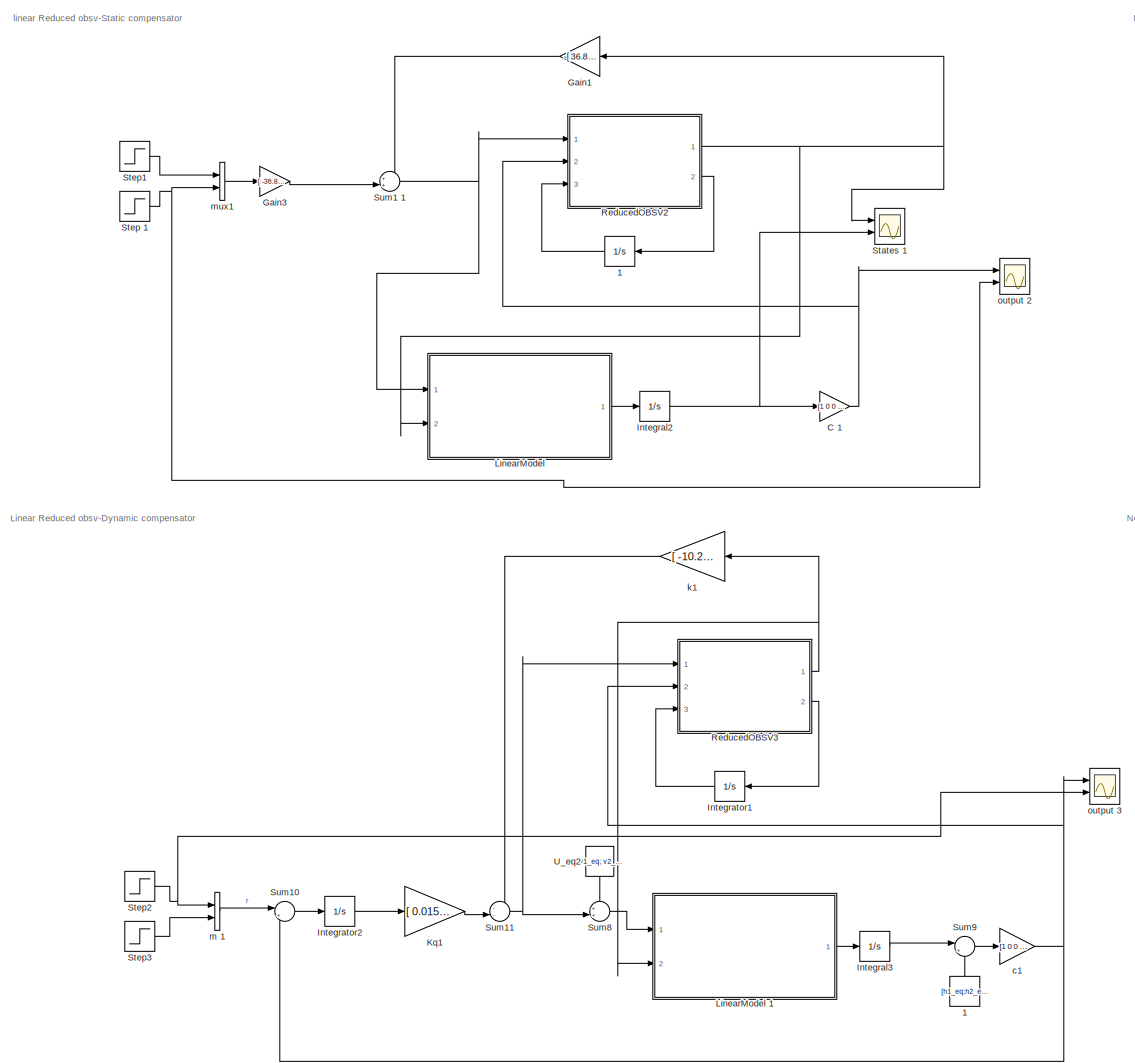
[diagram: root canvas - part 1/2, left side, full height]
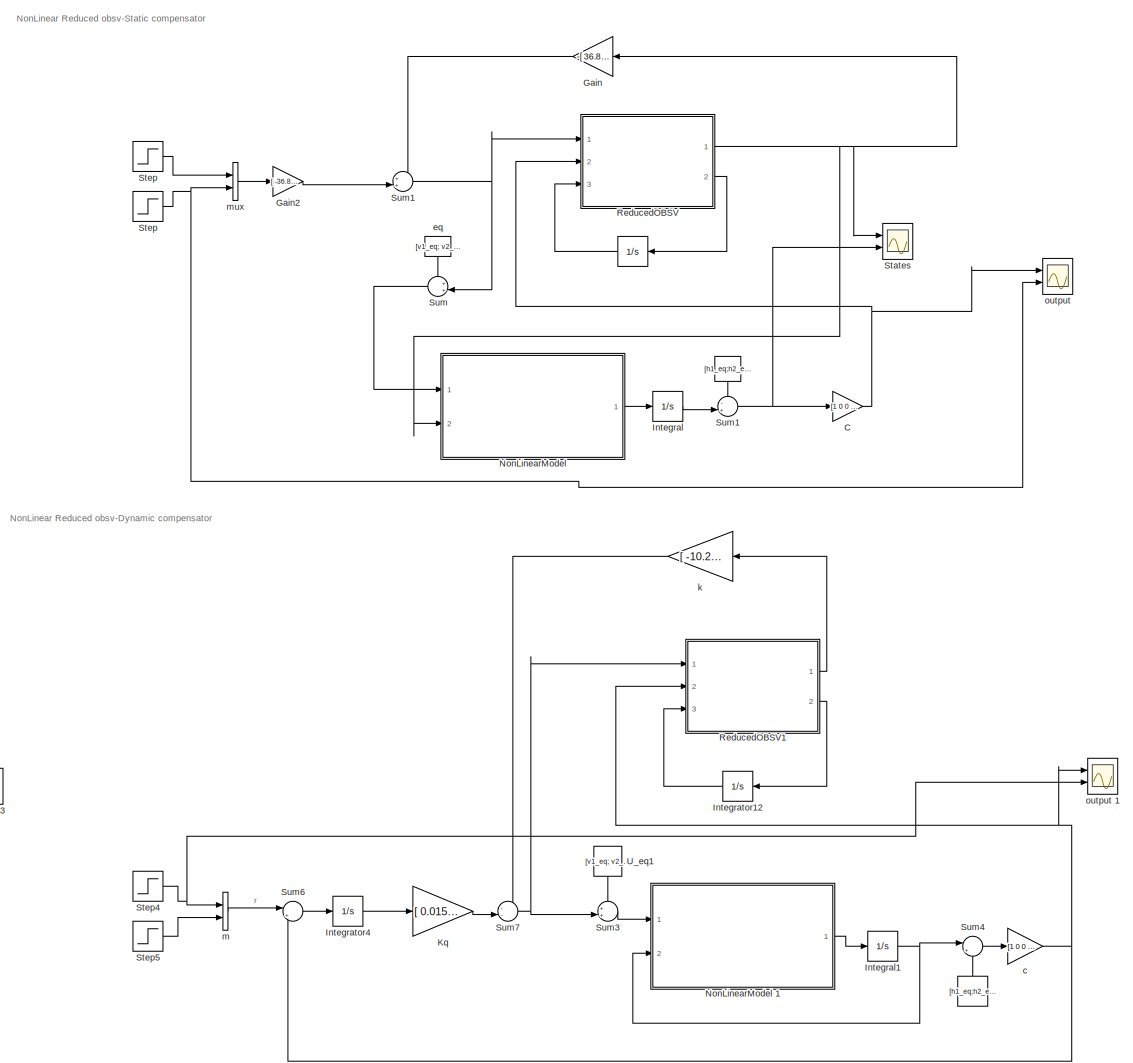
[diagram: root canvas - part 2/2, right side, full height]
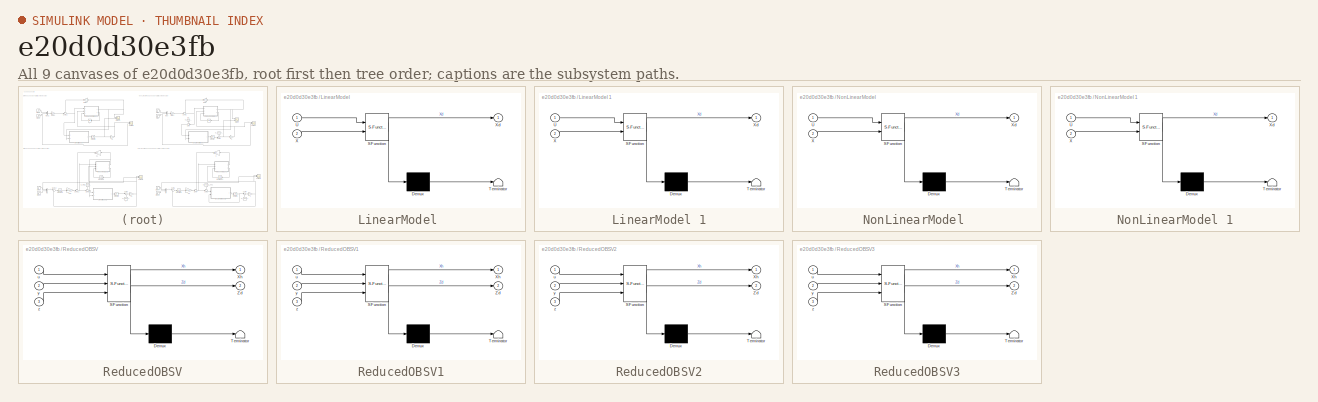
[diagram: thumbnail index - all 9 canvases of the model, root first then tree order]
MODEL slx_e20d0d30e3fb
KIND model
CONFIG AbsTol = auto
CONFIG EnableMultiTasking = off
CONFIG FixedStep = auto
CONFIG MaxStep = auto
CONFIG MinStep = auto
CONFIG RelTol = 1e-3
CONFIG SampleTimeConstraint = Unconstrained
CONFIG Solver = VariableStepAuto
CONFIG SolverName = VariableStepAuto
CONFIG StartTime = 0.0
CONFIG StopTime = 600
BLOCK [Constant]  
  NameLocation = left
  Value = [h1_eq;h2_eq;h3_eq;h4_eq]
BLOCK [Integrator]   
  InitialCondition = [0;0]
  NameLocation = top
  Ports = [1, 1]
BLOCK [Constant]      
  NameLocation = right
  Value = [h1_eq;h2_eq;h3_eq;h4_eq]
BLOCK [Constant]      1
  NameLocation = right
  Value = [h1_eq;h2_eq;h3_eq;h4_eq]
BLOCK [Integrator]   1
  InitialCondition = [1;1]
  NameLocation = top
  Ports = [1, 1]
BLOCK [Scope]  States 
  Floating = off
  NumInputPorts = 2
  Ports = [2]
  ScopeSpecificationString = Simulink.scopes.TimeScopeBlockCfg('CurrentConfiguration', extmgr.ConfigurationSet(extmgr.Configuration('Core','General UI',true,'FigureColor',[1 1 1]),extmgr.Configuration('Core','Source UI',true),extmgr.Configuration('Sources','WiredSimulink',true,'DataLoggingSaveFormat','StructureWithTime','DataLoggingDecimation','1','DataLoggingDecimateData',true),extmgr.Configuration('Visuals','Time Domain',tr...<+4528ch>
BLOCK [Scope]  States 1
  Floating = off
  NumInputPorts = 2
  Ports = [2]
  ScopeSpecificationString = Simulink.scopes.TimeScopeBlockCfg('CurrentConfiguration', extmgr.ConfigurationSet(extmgr.Configuration('Core','General UI',true,'FigureColor',[1 1 1]),extmgr.Configuration('Core','Source UI',true),extmgr.Configuration('Sources','WiredSimulink',true,'DataLoggingSaveFormat','StructureWithTime','DataLoggingDecimation','1','DataLoggingDecimateData',true,'DataLoggingVariableName','ScopeData2'),extmgr.C...<+4588ch>
BLOCK [Gain] C 
  Gain = [1 0 0 0;\n   0 1 0 0]
  Multiplication = Matrix(K*u)
BLOCK [Gain] C 1
  Gain = [1 0 0 0;\n   0 1 0 0]
  Multiplication = Matrix(K*u)
BLOCK [Gain] Gain
  Gain = -[ 36.82, 127.2, -58.99, 57.97; 31.33, 41.91,  23.64, -4.53]
  Multiplication = Matrix(K*u)
BLOCK [Gain] Gain1
  Gain = -[ 36.82, 127.2, -58.99, 57.97; 31.33, 41.91,  23.64, -4.53]
  Multiplication = Matrix(K*u)
BLOCK [Gain] Gain2
  Gain = [ -36.89, 193.5; 56.82,  28.4]
  Multiplication = Matrix(K*u)
BLOCK [Gain] Gain3
  Gain = [ -36.89, 193.5; 56.82,  28.4]
  Multiplication = Matrix(K*u)
BLOCK [Integrator] Integral
  InitialCondition = [h1_eq+0.1; h2_eq+0.1; h3_eq; h4_eq]
  Ports = [1, 1]
BLOCK [Integrator] Integral1
  InitialCondition = [h1_eq+0.1; h2_eq+0.1; h3_eq; h4_eq]
  Ports = [1, 1]
BLOCK [Integrator] Integral2
  InitialCondition = [0.5;0.5;05;0.5]
  Ports = [1, 1]
BLOCK [Integrator] Integral3
  InitialCondition = [h1_eq; h2_eq; h3_eq; h4_eq]
  Ports = [1, 1]
BLOCK [Integrator] Integrator1
  InitialCondition = [0;0]
  NameLocation = top
  Ports = [1, 1]
BLOCK [Integrator] Integrator12
  InitialCondition = [0;0]
  NameLocation = top
  Ports = [1, 1]
BLOCK [Integrator] Integrator2
  Ports = [1, 1]
BLOCK [Integrator] Integrator4
  Ports = [1, 1]
BLOCK [Gain] Kq
  Gain = [ 0.0157, -0.888; -0.994, -0.123]
  Multiplication = Matrix(K*u)
BLOCK [Gain] Kq1
  Gain = [ 0.0157, -0.888; -0.994, -0.123]
  Multiplication = Matrix(K*u)
BLOCK [SubSystem] LinearModel 
  ErrorFcn = Stateflow.Translate.translate
  PermitHierarchicalResolution = ExplicitOnly
  Ports = [2, 1]
  RequestExecContextInheritance = off
  SFBlockType = MATLAB Function
  TreatAsAtomicUnit = on
BLOCK [Demux] LinearModel / Demux 
  Outputs = 1
  Ports = [1, 1]
BLOCK [S-Function] LinearModel / SFunction 
  EnableBusSupport = on
  FunctionName = sf_sfun
  PortCounts = [2 2]
  Ports = [2, 2]
  SFcnIsStateOwnerBlock = off
  SFunctionDeploymentMode = off
  Tag = Stateflow S-Function 3
BLOCK [Terminator] LinearModel / Terminator 
BLOCK [Inport] LinearModel /U
BLOCK [Inport] LinearModel /X
  Port = 2
BLOCK [Outport] LinearModel /Xd
BLOCK [SubSystem] LinearModel 1
  ErrorFcn = Stateflow.Translate.translate
  PermitHierarchicalResolution = ExplicitOnly
  Ports = [2, 1]
  RequestExecContextInheritance = off
  SFBlockType = MATLAB Function
  TreatAsAtomicUnit = on
BLOCK [Demux] LinearModel 1/ Demux 
  Outputs = 1
  Ports = [1, 1]
BLOCK [S-Function] LinearModel 1/ SFunction 
  EnableBusSupport = on
  FunctionName = sf_sfun
  PortCounts = [2 2]
  Ports = [2, 2]
  SFcnIsStateOwnerBlock = off
  SFunctionDeploymentMode = off
  Tag = Stateflow S-Function 5
BLOCK [Terminator] LinearModel 1/ Terminator 
BLOCK [Inport] LinearModel 1/U
BLOCK [Inport] LinearModel 1/X
  Port = 2
BLOCK [Outport] LinearModel 1/Xd
BLOCK [SubSystem] NonLinearModel 
  ErrorFcn = Stateflow.Translate.translate
  PermitHierarchicalResolution = ExplicitOnly
  Ports = [2, 1]
  RequestExecContextInheritance = off
  SFBlockType = MATLAB Function
  TreatAsAtomicUnit = on
BLOCK [Demux] NonLinearModel / Demux 
  Outputs = 1
  Ports = [1, 1]
BLOCK [S-Function] NonLinearModel / SFunction 
  EnableBusSupport = on
  FunctionName = sf_sfun
  PortCounts = [2 2]
  Ports = [2, 2]
  SFcnIsStateOwnerBlock = off
  SFunctionDeploymentMode = off
  Tag = Stateflow S-Function 11
BLOCK [Terminator] NonLinearModel / Terminator 
BLOCK [Inport] NonLinearModel /U
BLOCK [Inport] NonLinearModel /X
  Port = 2
BLOCK [Outport] NonLinearModel /Xd
BLOCK [SubSystem] NonLinearModel 1
  ErrorFcn = Stateflow.Translate.translate
  PermitHierarchicalResolution = ExplicitOnly
  Ports = [2, 1]
  RequestExecContextInheritance = off
  SFBlockType = MATLAB Function
  TreatAsAtomicUnit = on
BLOCK [Demux] NonLinearModel 1/ Demux 
  Outputs = 1
  Ports = [1, 1]
BLOCK [S-Function] NonLinearModel 1/ SFunction 
  EnableBusSupport = on
  FunctionName = sf_sfun
  PortCounts = [2 2]
  Ports = [2, 2]
  SFcnIsStateOwnerBlock = off
  SFunctionDeploymentMode = off
  Tag = Stateflow S-Function 2
BLOCK [Terminator] NonLinearModel 1/ Terminator 
BLOCK [Inport] NonLinearModel 1/U
BLOCK [Inport] NonLinearModel 1/X
  Port = 2
BLOCK [Outport] NonLinearModel 1/Xd
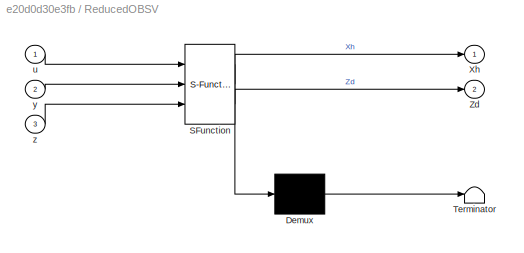
BLOCK [SubSystem] ReducedOBSV
  ErrorFcn = Stateflow.Translate.translate
  PermitHierarchicalResolution = ExplicitOnly
  Ports = [3, 2]
  RequestExecContextInheritance = off
  SFBlockType = MATLAB Function
  TreatAsAtomicUnit = on
BLOCK [Demux] ReducedOBSV/ Demux 
  Outputs = 1
  Ports = [1, 1]
BLOCK [S-Function] ReducedOBSV/ SFunction 
  EnableBusSupport = on
  FunctionName = sf_sfun
  PortCounts = [3 3]
  Ports = [3, 3]
  SFcnIsStateOwnerBlock = off
  SFunctionDeploymentMode = off
  Tag = Stateflow S-Function 7
BLOCK [Terminator] ReducedOBSV/ Terminator 
BLOCK [Outport] ReducedOBSV/Xh
BLOCK [Outport] ReducedOBSV/Zd
  Port = 2
BLOCK [Inport] ReducedOBSV/u
BLOCK [Inport] ReducedOBSV/y
  Port = 2
BLOCK [Inport] ReducedOBSV/z
  Port = 3
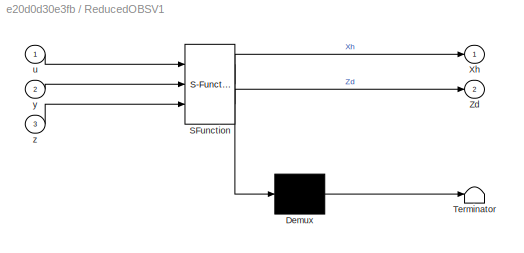
BLOCK [SubSystem] ReducedOBSV1
  ErrorFcn = Stateflow.Translate.translate
  PermitHierarchicalResolution = ExplicitOnly
  Ports = [3, 2]
  RequestExecContextInheritance = off
  SFBlockType = MATLAB Function
  TreatAsAtomicUnit = on
BLOCK [Demux] ReducedOBSV1/ Demux 
  Outputs = 1
  Ports = [1, 1]
BLOCK [S-Function] ReducedOBSV1/ SFunction 
  EnableBusSupport = on
  FunctionName = sf_sfun
  PortCounts = [3 3]
  Ports = [3, 3]
  SFcnIsStateOwnerBlock = off
  SFunctionDeploymentMode = off
  Tag = Stateflow S-Function 1
BLOCK [Terminator] ReducedOBSV1/ Terminator 
BLOCK [Outport] ReducedOBSV1/Xh
BLOCK [Outport] ReducedOBSV1/Zd
  Port = 2
BLOCK [Inport] ReducedOBSV1/u
BLOCK [Inport] ReducedOBSV1/y
  Port = 2
BLOCK [Inport] ReducedOBSV1/z
  Port = 3
BLOCK [SubSystem] ReducedOBSV2
  ErrorFcn = Stateflow.Translate.translate
  PermitHierarchicalResolution = ExplicitOnly
  Ports = [3, 2]
  RequestExecContextInheritance = off
  SFBlockType = MATLAB Function
  TreatAsAtomicUnit = on
BLOCK [Demux] ReducedOBSV2/ Demux 
  Outputs = 1
  Ports = [1, 1]
BLOCK [S-Function] ReducedOBSV2/ SFunction 
  EnableBusSupport = on
  FunctionName = sf_sfun
  PortCounts = [3 3]
  Ports = [3, 3]
  SFcnIsStateOwnerBlock = off
  SFunctionDeploymentMode = off
  Tag = Stateflow S-Function 4
BLOCK [Terminator] ReducedOBSV2/ Terminator 
BLOCK [Outport] ReducedOBSV2/Xh
BLOCK [Outport] ReducedOBSV2/Zd
  Port = 2
BLOCK [Inport] ReducedOBSV2/u
BLOCK [Inport] ReducedOBSV2/y
  Port = 2
BLOCK [Inport] ReducedOBSV2/z
  Port = 3
BLOCK [SubSystem] ReducedOBSV3
  ErrorFcn = Stateflow.Translate.translate
  PermitHierarchicalResolution = ExplicitOnly
  Ports = [3, 2]
  RequestExecContextInheritance = off
  SFBlockType = MATLAB Function
  TreatAsAtomicUnit = on
BLOCK [Demux] ReducedOBSV3/ Demux 
  Outputs = 1
  Ports = [1, 1]
BLOCK [S-Function] ReducedOBSV3/ SFunction 
  EnableBusSupport = on
  FunctionName = sf_sfun
  PortCounts = [3 3]
  Ports = [3, 3]
  SFcnIsStateOwnerBlock = off
  SFunctionDeploymentMode = off
  Tag = Stateflow S-Function 6
BLOCK [Terminator] ReducedOBSV3/ Terminator 
BLOCK [Outport] ReducedOBSV3/Xh
BLOCK [Outport] ReducedOBSV3/Zd
  Port = 2
BLOCK [Inport] ReducedOBSV3/u
BLOCK [Inport] ReducedOBSV3/y
  Port = 2
BLOCK [Inport] ReducedOBSV3/z
  Port = 3
BLOCK [Step] Step
  SampleTime = 0
BLOCK [Step] Step 
  SampleTime = 0
BLOCK [Step] Step 1
  SampleTime = 0
BLOCK [Step] Step1
  SampleTime = 0
BLOCK [Step] Step2
  SampleTime = 0
BLOCK [Step] Step3
  SampleTime = 0
BLOCK [Step] Step4
  SampleTime = 0
BLOCK [Step] Step5
  SampleTime = 0
BLOCK [Sum] Sum
  Inputs = ++|
  Ports = [2, 1]
BLOCK [Sum] Sum1
  Inputs = -+|
  Ports = [2, 1]
BLOCK [Sum] Sum1 
  Inputs = ++|
  Ports = [2, 1]
BLOCK [Sum] Sum1 1
  Inputs = ++|
  Ports = [2, 1]
BLOCK [Sum] Sum10
  Inputs = |+-
  Ports = [2, 1]
BLOCK [Sum] Sum11
  Inputs = --|
  Ports = [2, 1]
BLOCK [Sum] Sum3
  Inputs = ++|
  Ports = [2, 1]
BLOCK [Sum] Sum4
  Inputs = |+-
  Ports = [2, 1]
BLOCK [Sum] Sum6
  Inputs = |+-
  Ports = [2, 1]
BLOCK [Sum] Sum7
  Inputs = --|
  Ports = [2, 1]
BLOCK [Sum] Sum8
  Inputs = ++|
  Ports = [2, 1]
BLOCK [Sum] Sum9
  Inputs = |+-
  Ports = [2, 1]
BLOCK [Constant] U_eq1
  NameLocation = left
  Value = [v1_eq; v2_eq]
BLOCK [Constant] U_eq2
  NameLocation = left
  Value = [v1_eq; v2_eq]
BLOCK [Gain] c
  Gain = [1 0 0 0;\n   0 1 0 0]
  Multiplication = Matrix(K*u)
BLOCK [Gain] c1
  Gain = [1 0 0 0;\n   0 1 0 0]
  Multiplication = Matrix(K*u)
BLOCK [Constant] eq
  NameLocation = right
  Value = [v1_eq; v2_eq]
BLOCK [Gain] k
  Gain = [ -10.2, 36.3, -16.5,  24.5; 41.0, -4.6,  24.7, -13.1]
  Multiplication = Matrix(K*u)
BLOCK [Gain] k1
  Gain = [ -10.2, 36.3, -16.5,  24.5; 41.0, -4.6,  24.7, -13.1]
  Multiplication = Matrix(K*u)
BLOCK [Concatenate] m 
  Ports = [2, 1]
BLOCK [Concatenate] m 1
  Ports = [2, 1]
BLOCK [Concatenate] mux
  Ports = [2, 1]
BLOCK [Concatenate] mux1
  Ports = [2, 1]
BLOCK [Scope] output 
  Floating = off
  NumInputPorts = 2
  Ports = [2]
  ScopeSpecificationString = Simulink.scopes.TimeScopeBlockCfg('CurrentConfiguration', extmgr.ConfigurationSet(extmgr.Configuration('Core','General UI',true,'FigureColor',[1 1 1]),extmgr.Configuration('Core','Source UI',true),extmgr.Configuration('Sources','WiredSimulink',true,'DataLoggingSaveFormat','StructureWithTime','DataLoggingDecimation','1','DataLoggingDecimateData',true,'DataLoggingVariableName','ScopeData1'),extmgr.C...<+3196ch>
BLOCK [Scope] output 1
  Floating = off
  NumInputPorts = 2
  Ports = [2]
  ScopeSpecificationString = Simulink.scopes.TimeScopeBlockCfg('CurrentConfiguration', extmgr.ConfigurationSet(extmgr.Configuration('Core','General UI',true,'FigureColor',[1 1 1]),extmgr.Configuration('Core','Source UI',true),extmgr.Configuration('Sources','WiredSimulink',true,'DataLoggingSaveFormat','StructureWithTime','DataLoggingDecimation','1','DataLoggingDecimateData',true,'DataLoggingVariableName','ScopeData3'),extmgr.C...<+3193ch>
BLOCK [Scope] output 2
  Floating = off
  NumInputPorts = 2
  Ports = [2]
  ScopeSpecificationString = Simulink.scopes.TimeScopeBlockCfg('CurrentConfiguration', extmgr.ConfigurationSet(extmgr.Configuration('Core','General UI',true,'FigureColor',[1 1 1]),extmgr.Configuration('Core','Source UI',true),extmgr.Configuration('Sources','WiredSimulink',true,'DataLoggingSaveFormat','StructureWithTime','DataLoggingDecimation','1','DataLoggingDecimateData',true,'DataLoggingVariableName','ScopeData4'),extmgr.C...<+3201ch>
BLOCK [Scope] output 3
  Floating = off
  NumInputPorts = 2
  Ports = [2]
  ScopeSpecificationString = Simulink.scopes.TimeScopeBlockCfg('CurrentConfiguration', extmgr.ConfigurationSet(extmgr.Configuration('Core','General UI',true,'FigureColor',[1 1 1]),extmgr.Configuration('Core','Source UI',true),extmgr.Configuration('Sources','WiredSimulink',true,'DataLoggingSaveFormat','StructureWithTime','DataLoggingDecimation','1','DataLoggingDecimateData',true,'DataLoggingVariableName','ScopeData5'),extmgr.C...<+3198ch>
ANNOTATION (root): Linear Reduced obsv-Dynamic compensator
ANNOTATION (root): NonLinear Reduced obsv-Dynamic compensator
ANNOTATION (root): NonLinear Reduced obsv-Static compensator
ANNOTATION (root): linear Reduced obsv-Static compensator
LINE      1:1 -> Sum9:2
LINE      :1 -> Sum4:2
LINE   1:1 -> ReducedOBSV2:3
LINE   :1 -> ReducedOBSV:3
LINE  :1 -> Sum1:1
NET C 1:1 -> ReducedOBSV2:2, output 2:1
NET C :1 -> ReducedOBSV:2, output :1
LINE Gain1:1 -> Sum1 1:1
LINE Gain2:1 -> Sum1 :2
LINE Gain3:1 -> Sum1 1:2
LINE Gain:1 -> Sum1 :1
NET Integral1:1 -> NonLinearModel 1:2, Sum4:1
NET Integral2:1 ->  States 1:2, C 1:1
LINE Integral3:1 -> Sum9:1
LINE Integral:1 -> Sum1:2
LINE Integrator12:1 -> ReducedOBSV1:3
LINE Integrator1:1 -> ReducedOBSV3:3
LINE Integrator2:1 -> Kq1:1
LINE Integrator4:1 -> Kq:1
LINE Kq1:1 -> Sum11:2
LINE Kq:1 -> Sum7:2
LINE LinearModel 1:1 -> Integral3:1
LINE LinearModel :1 -> Integral2:1
LINE NonLinearModel 1:1 -> Integral1:1
LINE NonLinearModel :1 -> Integral:1
LINE ReducedOBSV1:1 -> k:1
LINE ReducedOBSV1:2 -> Integrator12:1
NET ReducedOBSV2:1 ->  States 1:1, Gain1:1, LinearModel :2
LINE ReducedOBSV2:2 ->   1:1
NET ReducedOBSV3:1 -> LinearModel 1:2, k1:1
LINE ReducedOBSV3:2 -> Integrator1:1
NET ReducedOBSV:1 ->  States :1, Gain:1, NonLinearModel :2
LINE ReducedOBSV:2 ->   :1
NET Step 1:1 -> mux1:2, output 2:2
NET Step :1 -> mux:2, output :2
LINE Step1:1 -> mux1:1
NET Step2:1 -> m 1:1, output 3:2
LINE Step3:1 -> m 1:2
NET Step4:1 -> m :1, output 1:2
LINE Step5:1 -> m :2
LINE Step:1 -> mux:1
NET Sum1 1:1 -> LinearModel :1, ReducedOBSV2:1
NET Sum1 :1 -> ReducedOBSV:1, Sum:2
LINE Sum10:1 -> Integrator2:1
NET Sum11:1 -> ReducedOBSV3:1, Sum8:2
NET Sum1:1 ->  States :2, C :1
LINE Sum3:1 -> NonLinearModel 1:1
LINE Sum4:1 -> c:1
LINE Sum6:1 -> Integrator4:1
NET Sum7:1 -> ReducedOBSV1:1, Sum3:2
LINE Sum8:1 -> LinearModel 1:1
LINE Sum9:1 -> c1:1
LINE Sum:1 -> NonLinearModel :1
LINE U_eq1:1 -> Sum3:1
LINE U_eq2:1 -> Sum8:1
NET c1:1 -> ReducedOBSV3:2, Sum10:2, output 3:1
NET c:1 -> ReducedOBSV1:2, Sum6:2, output 1:1
LINE eq:1 -> Sum:1
LINE k1:1 -> Sum11:1
LINE k:1 -> Sum7:1
LINE m 1:1 -> Sum10:1
LINE m :1 -> Sum6:1
LINE mux1:1 -> Gain3:1
LINE mux:1 -> Gain2:1
note: NET lines group one-source signal fan-out (src -> all destinations, sorted); 1:1 wires keep LINE
CHART ReducedOBSV1 states=1 transitions=1
  STATE_LABEL 'eML_blk_kernel()'
  STATE_LABEL 'SCRIPT:\nfunction [Xh, Zd]= Obsv_Reduced(u , y, z)\n% System main Matrices\nB = [ 0.00306,      0;\n       0, 0.0035;\n       0, 0.0065;\n 0.00714,      0];\n\n\n C = [ 1.0,   0, 0, 0;\n   0, 1.0, 0, 0];\n\n% Observer Matrices\nF = diag([-0.4,-0.45]);\n\nT = [ 2.62,     0, -0.205,     0;\n    0, -2.32,      0, 0.195];\n\n\nL = [ 1.0,    0;\n   0, -1.0];\n\nZd = F*z + T*B*u + L*y;\nXh = ([C;T]^-1)*[y;z];\nend'  <repeated x4 — deduplicated; at blocks: ReducedOBSV1, ReducedOBSV2, ReducedOBSV3, ReducedOBSV>
CHART NonLinearModel 1 states=1 transitions=1
  STATE_LABEL 'eML_blk_kernel()'
  STATE_LABEL 'SCRIPT:\nfunction Xd = NonlinearModel(U, X)\n\nA = [730 730 730 730];\na = [2.10 2.14 2.2 2.3];\ng = 981;\ny = [0.3 0.35];\nk = [7.45 7.30];\n\nv1 = U(1);\nv2 = U(2);\n\nh1 = X(1);\nh2 = X(2);\nh3 = X(3);\nh4 = X(4);\n\nh1_d = -a(1)/A(1)*sqrt(2*g*h1)+a(3)/A(1)*sqrt(2*g*h3)+y(1)*k(1)/A(1)*v1;\nh2_d = -a(2)/A(2)*sqrt(2*g*h2)+a(4)/A(2)*sqrt(2*g*h4)+y(2)*k(2)/A(2)*v2;\nh3_d = -a(3)/A(3)*sqrt(2*g*h3)+(1 - y(2))*k(2)/A(3)...<+89ch>'
CHART LinearModel  states=1 transitions=1
  STATE_LABEL 'eML_blk_kernel()'
  STATE_LABEL 'SCRIPT:\nfunction Xd = linear_system(U, X)\n\nA = [ -0.01887,        0,  0.02848,        0;\n        0, -0.01906,        0,  0.03557;\n        0,        0, -0.02848,        0;\n        0,        0,        0, -0.03557];\n    \nB = [ 0.003062,      0;\n         0, 0.0035;\n        0, 0.0065;\n 0.007144,      0];\n\nXd = A * X + B * U; '
CHART ReducedOBSV2 states=1 transitions=1
  STATE_LABEL 'eML_blk_kernel()'
CHART LinearModel 1 states=1 transitions=1
  STATE_LABEL 'eML_blk_kernel()'
  STATE_LABEL 'SCRIPT:\nfunction Xd = linear_system(U, X)\n\nA = [ -0.01887,        0,  0.02848,        0;\n        0, -0.01906,        0,  0.03557;\n        0,        0, -0.02848,        0;\n        0,        0,        0, -0.03557];\n    \nB = [ 0.003062,      0;\n         0, 0.0035;\n        0, 0.0065;\n 0.007144,      0];\n\nXd = A * X + B * U; '
CHART ReducedOBSV3 states=1 transitions=1
  STATE_LABEL 'eML_blk_kernel()'
CHART ReducedOBSV states=1 transitions=1
  STATE_LABEL 'eML_blk_kernel()'
CHART NonLinearModel  states=1 transitions=1
  STATE_LABEL 'eML_blk_kernel()'
  STATE_LABEL 'SCRIPT:\nfunction Xd = NonlinearModel(U, X)\n\nA = [730 730 730 730];\na = [2.10 2.14 2.2 2.3];\ng = 981;\ny = [0.3 0.35];\nk = [7.45 7.30];\n\nv1 = U(1);\nv2 = U(2);\n\nh1 = X(1);\nh2 = X(2);\nh3 = X(3);\nh4 = X(4);\n\nh1_d = -a(1)/A(1)*sqrt(2*g*h1)+a(3)/A(1)*sqrt(2*g*h3)+y(1)*k(1)/A(1)*v1;\nh2_d = -a(2)/A(2)*sqrt(2*g*h2)+a(4)/A(2)*sqrt(2*g*h4)+y(2)*k(2)/A(2)*v2;\nh3_d = -a(3)/A(3)*sqrt(2*g*h3)+(1 - y(2))*k(2)/A(3)...<+89ch>'
CHART  states=0 transitions=0
CHART  states=0 transitions=0
CHART  states=0 transitions=0
CHART  states=0 transitions=0
CHART  states=0 transitions=0
CHART  states=0 transitions=0
CHART  states=0 transitions=0
CHART  states=0 transitions=0
